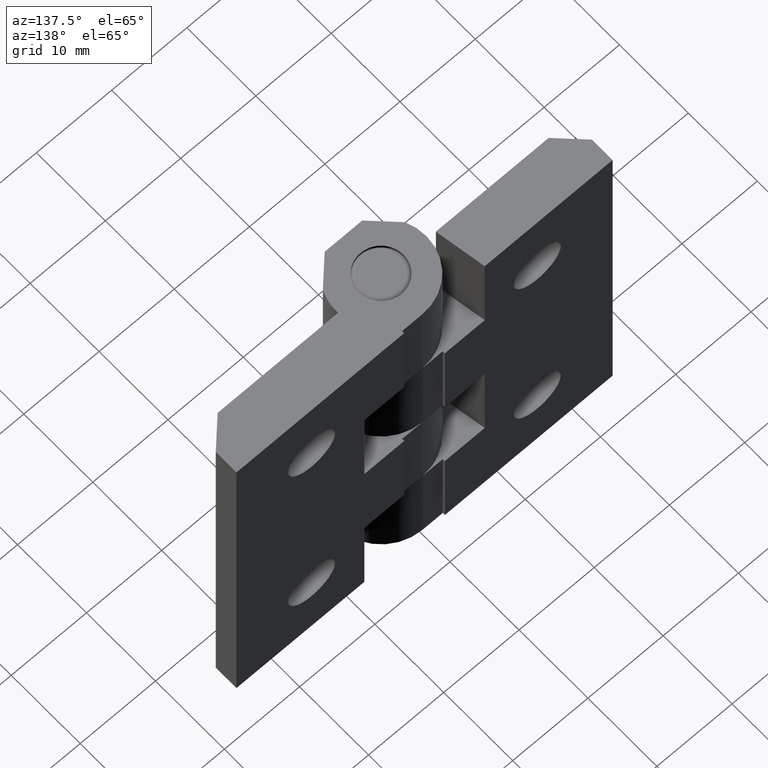
[diagram: clean part render]
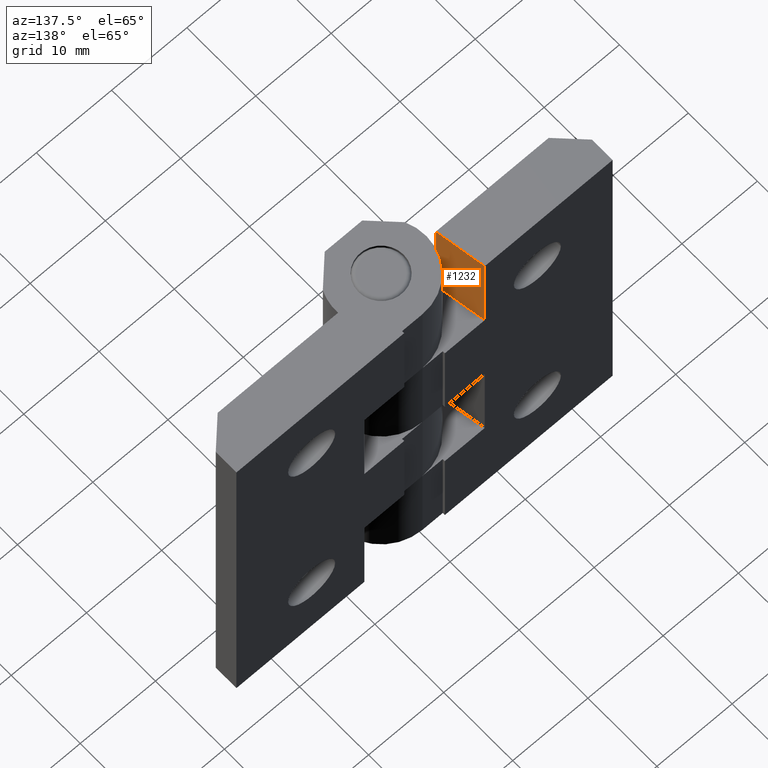
[diagram: same view with one face highlighted and labeled with its STEP entity id]
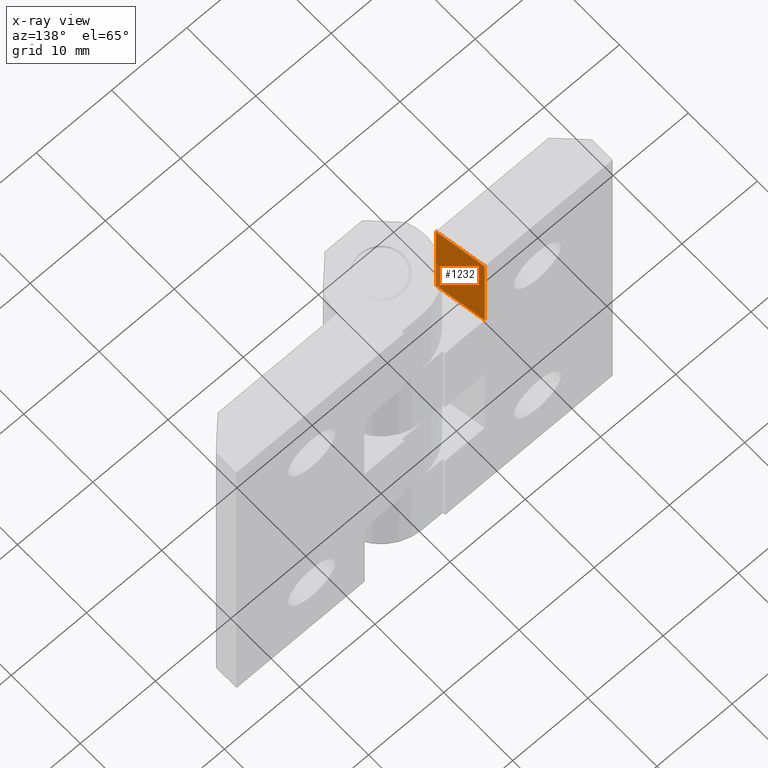
[diagram: x-ray of the same camera — body ghosted, the highlighted face saturated]
A machine part, auxiliary view. The second image highlights one B-rep face of the part: STEP entity #1232.
The next image is the same camera in x-ray: the body ghosted, the highlighted face saturated — about 5% of this face is hidden behind the body in this view.
In plain terms, the highlighted planar face has unit normal (-0.9864, -0.1644, -0).
Its self-contained STEP definition (entity closure, byte-faithful):
#177=FACE_OUTER_BOUND('',#264,.T.);
#264=EDGE_LOOP('',(#1049,#1050,#1051,#1052));
#393=LINE('',#2003,#515);
#394=LINE('',#2005,#516);
#395=LINE('',#2007,#517);
#396=LINE('',#2008,#518);
#515=VECTOR('',#1637,6.08276253029822);
#516=VECTOR('',#1638,12.5);
#517=VECTOR('',#1639,6.08276253029822);
#518=VECTOR('',#1640,12.5);
#637=VERTEX_POINT('',#2001);
#638=VERTEX_POINT('',#2002);
#639=VERTEX_POINT('',#2004);
#640=VERTEX_POINT('',#2006);
#787=EDGE_CURVE('',#637,#638,#393,.T.);
#788=EDGE_CURVE('',#639,#637,#394,.T.);
#789=EDGE_CURVE('',#640,#639,#395,.T.);
#790=EDGE_CURVE('',#638,#640,#396,.T.);
#1049=ORIENTED_EDGE('',*,*,#787,.F.);
#1050=ORIENTED_EDGE('',*,*,#788,.F.);
#1051=ORIENTED_EDGE('',*,*,#789,.F.);
#1052=ORIENTED_EDGE('',*,*,#790,.F.);
#1170=PLANE('',#1338);
#1232=ADVANCED_FACE('',(#177),#1170,.F.);
#1338=AXIS2_PLACEMENT_3D('',#2000,#1635,#1636);
#1635=DIRECTION('center_axis',(0.986393923832144,-0.164398987305357,0.));
#1636=DIRECTION('ref_axis',(0.164398987305357,0.986393923832144,0.));
#1637=DIRECTION('',(-0.164398987305357,-0.986393923832144,0.));
#1638=DIRECTION('',(0.,0.,1.));
#1639=DIRECTION('',(0.164398987305357,0.986393923832144,0.));
#1640=DIRECTION('',(8.88178419700125E-17,1.02026432234436E-32,-1.));
#2000=CARTESIAN_POINT('Origin',(6.99999999999998,0.299999999999984,-25.));
#2001=CARTESIAN_POINT('',(7.99999999999998,6.29999999999999,-12.5));
#2002=CARTESIAN_POINT('',(6.99999999999998,0.299999999999985,-12.5));
#2003=CARTESIAN_POINT('',(7.24999999999998,1.79999999999998,-12.5));
#2004=CARTESIAN_POINT('',(7.99999999999998,6.29999999999999,-25.));
#2005=CARTESIAN_POINT('',(7.99999999999998,6.29999999999999,-12.5));
#2006=CARTESIAN_POINT('',(6.99999999999998,0.299999999999985,-25.));
#2007=CARTESIAN_POINT('',(7.19716183985906,1.48297103915444,-25.));
#2008=CARTESIAN_POINT('',(6.99999999999998,0.299999999999985,-12.5));